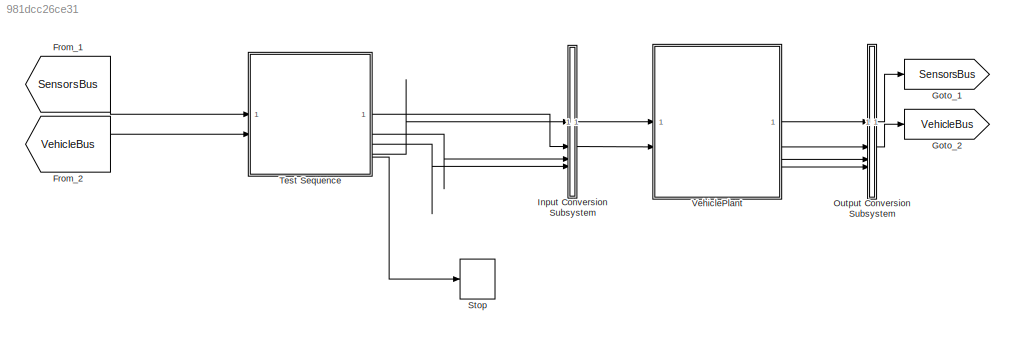
MODEL slx_981dcc26ce31
KIND model
BLOCK [From] From_1
  GotoTag = SensorsBus
BLOCK [From] From_2
  GotoTag = VehicleBus
BLOCK [Goto] Goto_1
  GotoTag = SensorsBus
BLOCK [Goto] Goto_2
  GotoTag = VehicleBus
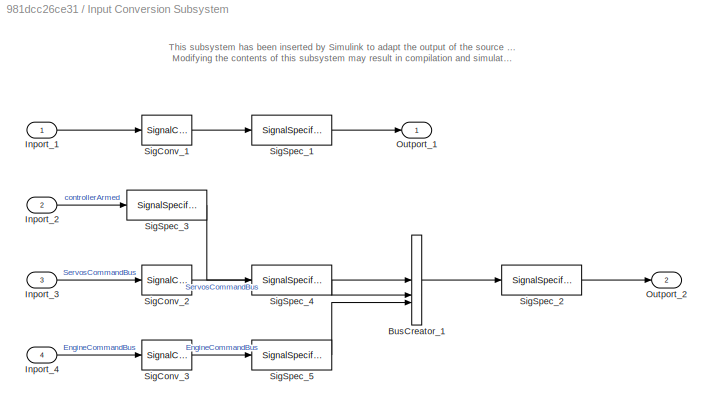
BLOCK [SubSystem] Input Conversion Subsystem
  AttributesFormatString = %<Description>
  Description = Signal spec.\nand routing
  Permissions = ReadOnly
  PermitHierarchicalResolution = ExplicitOnly
  Tag = __SLT_ICS__
  TreatAsGroupedWhenPropagatingVariantConditions = off
  UserDataPersistent = on
BLOCK [BusCreator] Input Conversion Subsystem/BusCreator_1
  InheritFromInputs = on
  Inputs = 3
  OutDataTypeStr = Bus: ActuatorCommandBus
BLOCK [Inport] Input Conversion Subsystem/Inport_1
BLOCK [Inport] Input Conversion Subsystem/Inport_2
  Port = 2
BLOCK [Inport] Input Conversion Subsystem/Inport_3
  Port = 3
BLOCK [Inport] Input Conversion Subsystem/Inport_4
  Port = 4
BLOCK [Outport] Input Conversion Subsystem/Outport_1
BLOCK [Outport] Input Conversion Subsystem/Outport_2
  Port = 2
BLOCK [SignalConversion] Input Conversion Subsystem/SigConv_1
  ConversionOutput = Virtual bus
  OverrideOpt = off
BLOCK [SignalConversion] Input Conversion Subsystem/SigConv_2
  ConversionOutput = Nonvirtual bus
  OverrideOpt = off
BLOCK [SignalConversion] Input Conversion Subsystem/SigConv_3
  ConversionOutput = Nonvirtual bus
  OverrideOpt = off
BLOCK [SignalSpecification] Input Conversion Subsystem/SigSpec_1
  OutDataTypeStr = Bus: FailureBus
  SampleTime = [-1, 0]
BLOCK [SignalSpecification] Input Conversion Subsystem/SigSpec_2
  OutDataTypeStr = Bus: ActuatorCommandBus
  SampleTime = [-1, 0]
BLOCK [SignalSpecification] Input Conversion Subsystem/SigSpec_3
  Dimensions = [1]
  OutDataTypeStr = double
  SampleTime = [-1, 0]
  SignalType = real
  VarSizeSig = No
BLOCK [SignalSpecification] Input Conversion Subsystem/SigSpec_4
  BusOutputAsStruct = on
  Dimensions = [1]
  OutDataTypeStr = Bus: ServosCommandBus
  SampleTime = [-1, 0]
  SignalType = real
  VarSizeSig = No
BLOCK [SignalSpecification] Input Conversion Subsystem/SigSpec_5
  BusOutputAsStruct = on
  Dimensions = [1]
  OutDataTypeStr = Bus: EngineCommandBus
  SampleTime = [-1, 0]
  SignalType = real
  VarSizeSig = No
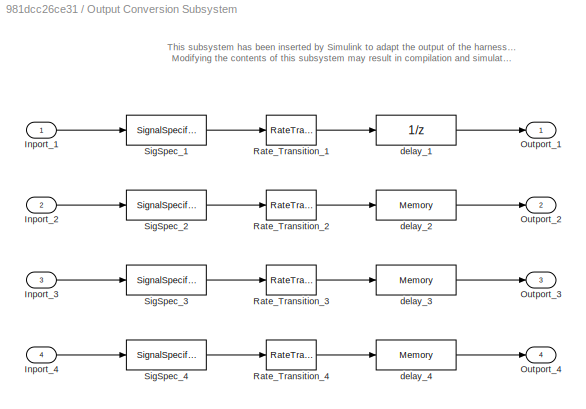
BLOCK [SubSystem] Output Conversion Subsystem
  AttributesFormatString = %<Description>
  Description = Signal spec.\nand routing
  Permissions = ReadOnly
  PermitHierarchicalResolution = ExplicitOnly
  Tag = __SLT_OCS__
  TreatAsGroupedWhenPropagatingVariantConditions = off
  UserDataPersistent = on
BLOCK [Inport] Output Conversion Subsystem/Inport_1
BLOCK [Inport] Output Conversion Subsystem/Inport_2
  Port = 2
BLOCK [Inport] Output Conversion Subsystem/Inport_3
  Port = 3
BLOCK [Inport] Output Conversion Subsystem/Inport_4
  Port = 4
BLOCK [Outport] Output Conversion Subsystem/Outport_1
BLOCK [Outport] Output Conversion Subsystem/Outport_2
  Port = 2
BLOCK [Outport] Output Conversion Subsystem/Outport_3
  Port = 3
BLOCK [Outport] Output Conversion Subsystem/Outport_4
  Port = 4
BLOCK [RateTransition] Output Conversion Subsystem/Rate_Transition_1
  OutPortSampleTimeOpt = Inherit
BLOCK [RateTransition] Output Conversion Subsystem/Rate_Transition_2
  OutPortSampleTimeOpt = Inherit
BLOCK [RateTransition] Output Conversion Subsystem/Rate_Transition_3
  OutPortSampleTimeOpt = Inherit
BLOCK [RateTransition] Output Conversion Subsystem/Rate_Transition_4
  OutPortSampleTimeOpt = Inherit
BLOCK [SignalSpecification] Output Conversion Subsystem/SigSpec_1
  Dimensions = [1]
  OutDataTypeStr = Bus: SensorsBus
  SampleTime = 0.004
  SignalType = real
  VarSizeSig = No
BLOCK [SignalSpecification] Output Conversion Subsystem/SigSpec_2
  Dimensions = [1]
  OutDataTypeStr = Bus: VehicleBus
  SignalType = real
  VarSizeSig = No
BLOCK [SignalSpecification] Output Conversion Subsystem/SigSpec_3
  Dimensions = [1]
  OutDataTypeStr = Bus: EnvironmentBus
  SignalType = real
  VarSizeSig = No
BLOCK [SignalSpecification] Output Conversion Subsystem/SigSpec_4
  Dimensions = [1]
  OutDataTypeStr = Bus: ActuatorBus
  SignalType = real
  VarSizeSig = No
BLOCK [UnitDelay] Output Conversion Subsystem/delay_1
  InitialCondition = IC1
  SampleTime = -1
BLOCK [Memory] Output Conversion Subsystem/delay_2
  InitialCondition = IC2
BLOCK [Memory] Output Conversion Subsystem/delay_3
  InitialCondition = IC3
BLOCK [Memory] Output Conversion Subsystem/delay_4
  InitialCondition = IC4
BLOCK [Stop] Stop
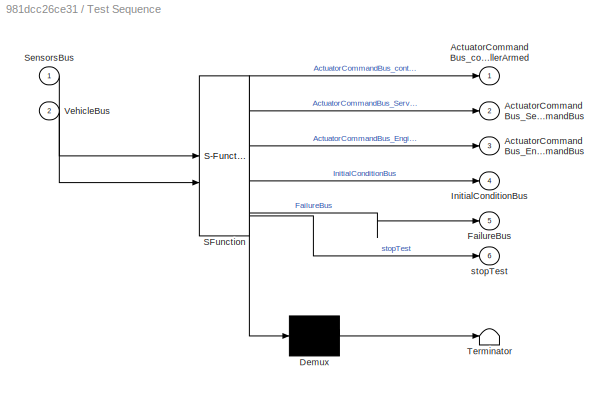
BLOCK [SubSystem] Test Sequence
  ErrorFcn = Stateflow.Translate.translate
  PermitHierarchicalResolution = ExplicitOnly
  SFBlockType = Test Sequence
  ShowPortLabels = none
  TreatAsAtomicUnit = on
BLOCK [Demux] Test Sequence/ Demux 
  Outputs = 1
BLOCK [S-Function] Test Sequence/ SFunction 
  EnableBusSupport = on
  FunctionName = sf_sfun
  Parameters = 1
  PortCounts = [2 7]
  SFcnIsStateOwnerBlock = off
  SFunctionDeploymentMode = off
  Tag = Stateflow S-Function 4
BLOCK [Terminator] Test Sequence/ Terminator 
BLOCK [Outport] Test Sequence/ActuatorCommandBus_EngineCommandBus
  Port = 3
BLOCK [Outport] Test Sequence/ActuatorCommandBus_ServosCommandBus
  Port = 2
BLOCK [Outport] Test Sequence/ActuatorCommandBus_controllerArmed
BLOCK [Outport] Test Sequence/FailureBus
  Port = 5
BLOCK [Outport] Test Sequence/InitialConditionBus
  Port = 4
BLOCK [Inport] Test Sequence/SensorsBus
BLOCK [Inport] Test Sequence/VehicleBus
  Port = 2
BLOCK [Outport] Test Sequence/stopTest
  Port = 6
BLOCK [ModelReference] VehiclePlant
  ModelNameDialog = VehiclePlant
  ModelReferenceVersion = 1.47
ANNOTATION Input Conversion Subsystem: This subsystem has been inserted by Simulink to adapt the output of the source blocks to the interface required by the harnessed component. Modifying the contents of this subsystem may result in compilation and simulation failure.
ANNOTATION Output Conversion Subsystem: This subsystem has been inserted by Simulink to adapt the output of the harnessed component to the interface required by the sink blocks. Modifying the contents of this subsystem may result in compilation and simulation failure.
LINE From_1:1 -> Test Sequence:1
LINE From_2:1 -> Test Sequence:2
LINE Input Conversion Subsystem/BusCreator_1:1 -> Input Conversion Subsystem/SigSpec_2:1
LINE Input Conversion Subsystem/Inport_1:1 -> Input Conversion Subsystem/SigConv_1:1
LINE Input Conversion Subsystem/Inport_2:1 -> Input Conversion Subsystem/SigSpec_3:1
LINE Input Conversion Subsystem/Inport_3:1 -> Input Conversion Subsystem/SigConv_2:1
LINE Input Conversion Subsystem/Inport_4:1 -> Input Conversion Subsystem/SigConv_3:1
LINE Input Conversion Subsystem/SigConv_1:1 -> Input Conversion Subsystem/SigSpec_1:1
LINE Input Conversion Subsystem/SigConv_2:1 -> Input Conversion Subsystem/SigSpec_4:1
LINE Input Conversion Subsystem/SigConv_3:1 -> Input Conversion Subsystem/SigSpec_5:1
LINE Input Conversion Subsystem/SigSpec_1:1 -> Input Conversion Subsystem/Outport_1:1
LINE Input Conversion Subsystem/SigSpec_2:1 -> Input Conversion Subsystem/Outport_2:1
LINE Input Conversion Subsystem/SigSpec_3:1 -> Input Conversion Subsystem/BusCreator_1:1
LINE Input Conversion Subsystem/SigSpec_4:1 -> Input Conversion Subsystem/BusCreator_1:2
LINE Input Conversion Subsystem/SigSpec_5:1 -> Input Conversion Subsystem/BusCreator_1:3
LINE Input Conversion Subsystem:1 -> VehiclePlant:1
LINE Input Conversion Subsystem:2 -> VehiclePlant:2
LINE Output Conversion Subsystem/Inport_1:1 -> Output Conversion Subsystem/SigSpec_1:1
LINE Output Conversion Subsystem/Inport_2:1 -> Output Conversion Subsystem/SigSpec_2:1
LINE Output Conversion Subsystem/Inport_3:1 -> Output Conversion Subsystem/SigSpec_3:1
LINE Output Conversion Subsystem/Inport_4:1 -> Output Conversion Subsystem/SigSpec_4:1
LINE Output Conversion Subsystem/Rate_Transition_1:1 -> Output Conversion Subsystem/delay_1:1
LINE Output Conversion Subsystem/Rate_Transition_2:1 -> Output Conversion Subsystem/delay_2:1
LINE Output Conversion Subsystem/Rate_Transition_3:1 -> Output Conversion Subsystem/delay_3:1
LINE Output Conversion Subsystem/Rate_Transition_4:1 -> Output Conversion Subsystem/delay_4:1
LINE Output Conversion Subsystem/SigSpec_1:1 -> Output Conversion Subsystem/Rate_Transition_1:1
LINE Output Conversion Subsystem/SigSpec_2:1 -> Output Conversion Subsystem/Rate_Transition_2:1
LINE Output Conversion Subsystem/SigSpec_3:1 -> Output Conversion Subsystem/Rate_Transition_3:1
LINE Output Conversion Subsystem/SigSpec_4:1 -> Output Conversion Subsystem/Rate_Transition_4:1
LINE Output Conversion Subsystem/delay_1:1 -> Output Conversion Subsystem/Outport_1:1
LINE Output Conversion Subsystem/delay_2:1 -> Output Conversion Subsystem/Outport_2:1
LINE Output Conversion Subsystem/delay_3:1 -> Output Conversion Subsystem/Outport_3:1
LINE Output Conversion Subsystem/delay_4:1 -> Output Conversion Subsystem/Outport_4:1
LINE Output Conversion Subsystem:1 -> Goto_1:1
LINE Output Conversion Subsystem:2 -> Goto_2:1
LINE Test Sequence:1 -> Input Conversion Subsystem:2
LINE Test Sequence:2 -> Input Conversion Subsystem:3
LINE Test Sequence:3 -> Input Conversion Subsystem:4
LINE Test Sequence:5 -> Input Conversion Subsystem:1
LINE Test Sequence:6 -> Stop:1
LINE VehiclePlant:1 -> Output Conversion Subsystem:1
LINE VehiclePlant:2 -> Output Conversion Subsystem:2
LINE VehiclePlant:3 -> Output Conversion Subsystem:3
LINE VehiclePlant:4 -> Output Conversion Subsystem:4
CHART Test Sequence states=6 transitions=6
  STATE_LABEL 'Scenario'
  STATE_LABEL 'Initialize\n\n%% Initialize data outputs.\nActuatorCommandBus_controllerArmed = 0;\nActuatorCommandBus_ServosCommandBus.ServosCommandF16Bus.cmdAileron_nd = 0;\nActuatorCommandBus_ServosCommandBus.ServosCommandF16Bus.cmdElevator_nd = 0;\nActuatorCommandBus_ServosCommandBus.ServosCommandF16Bus.cmdRudder_nd = 0;\nActuatorCommandBus_EngineCommandBus.cmdThrottle_unit = 0;\nFailureBus.aileronsFreeze_isTrue = fa...<+171ch>'
  STATE_LABEL 'step_1\n\n%% Initialize data outputs.\nActuatorCommandBus_controllerArmed = 1;\nActuatorCommandBus_EngineCommandBus.cmdThrottle_unit = 1;\nActuatorCommandBus_ServosCommandBus.ServosCommandF16Bus.cmdElevator_nd = -0.15;\n\n\n'
  STATE_LABEL 'step_2\n\n%% Initialize data outputs.\nActuatorCommandBus_ServosCommandBus.ServosCommandF16Bus.cmdElevator_nd = -0.03;\n\n\n\n'
  STATE_LABEL 'step_3\nActuatorCommandBus_ServosCommandBus.ServosCommandF16Bus.cmdElevator_nd = -0.09;\n'
  STATE_LABEL 'EndTest\nstopTest = true;'
  STATE_LABEL '[\ntrue\n]'
  STATE_LABEL '[\nafter(30,sec)\n]'
  STATE_LABEL '[\nafter(100,sec)\n]'
  STATE_LABEL '[\nafter(150,sec)\n]'
  STATE_LABEL 'Initialize\n\n%% Initialize data outputs.\nActuatorCommandBus_controllerArmed = 0;\nActuatorCommandBus_ServosCommandBus.ServosCommandF16Bus.cmdAileron_nd = 0;\nActuatorCommandBus_ServosCommandBus.ServosCommandF16Bus.cmdElevator_nd = 0;\nActuatorCommandBus_ServosCommandBus.ServosCommandF16Bus.cmdRudder_nd = 0;\nActuatorCommandBus_EngineCommandBus.cmdThrottle_unit = 0;\nFailureBus.aileronsFreeze_isTrue = fa...<+171ch>'
  STATE_LABEL 'step_1\n\n%% Initialize data outputs.\nActuatorCommandBus_controllerArmed = 1;\nActuatorCommandBus_EngineCommandBus.cmdThrottle_unit = 1;\nActuatorCommandBus_ServosCommandBus.ServosCommandF16Bus.cmdElevator_nd = -0.15;\n\n\n'
  STATE_LABEL 'step_2\n\n%% Initialize data outputs.\nActuatorCommandBus_ServosCommandBus.ServosCommandF16Bus.cmdElevator_nd = -0.03;\n\n\n\n'
  STATE_LABEL 'step_3\nActuatorCommandBus_ServosCommandBus.ServosCommandF16Bus.cmdElevator_nd = -0.09;\n'
  STATE_LABEL 'EndTest\nstopTest = true;'
